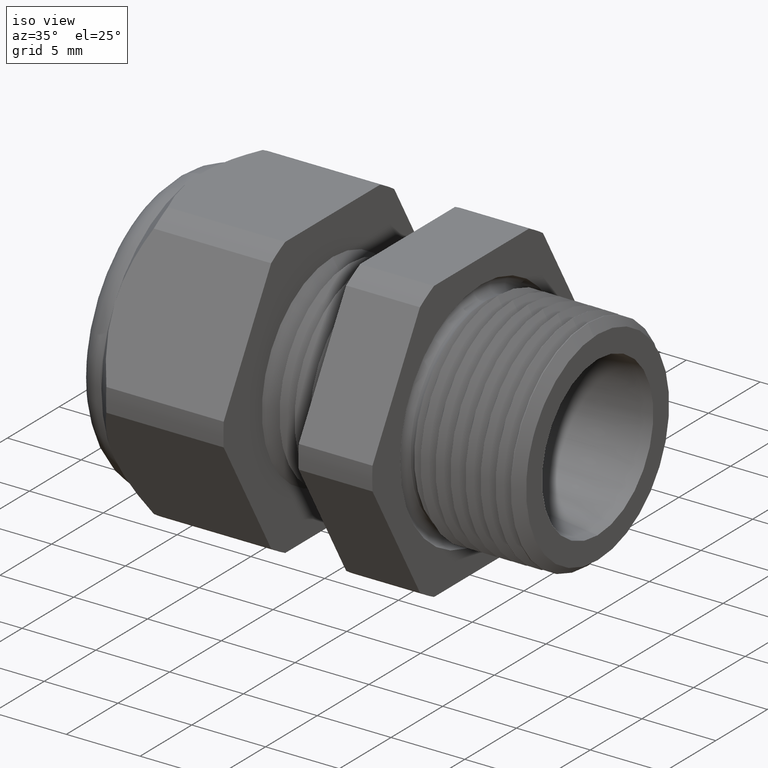
[diagram: clean part render]
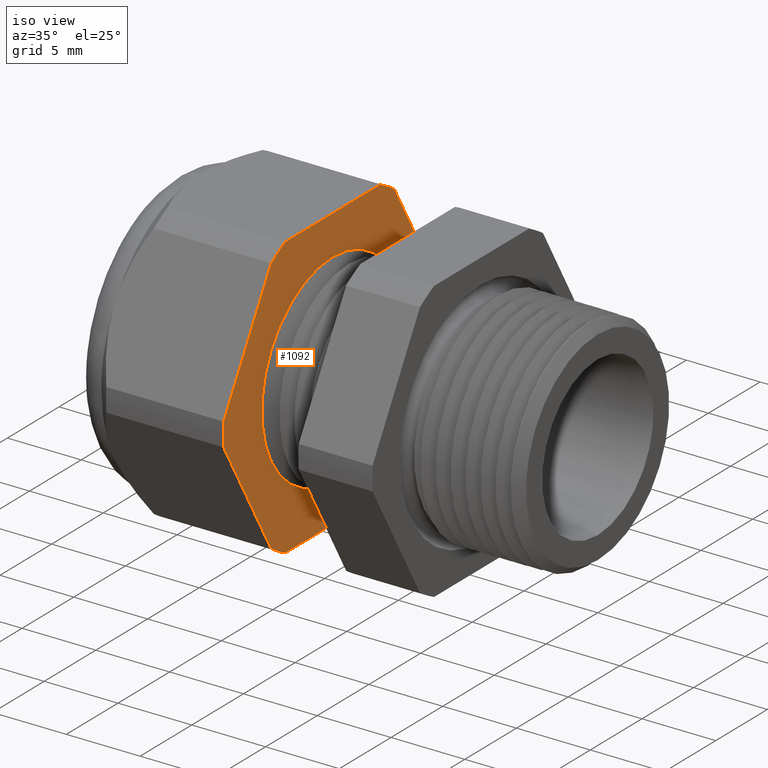
[diagram: same view with one face highlighted and labeled with its STEP entity id]
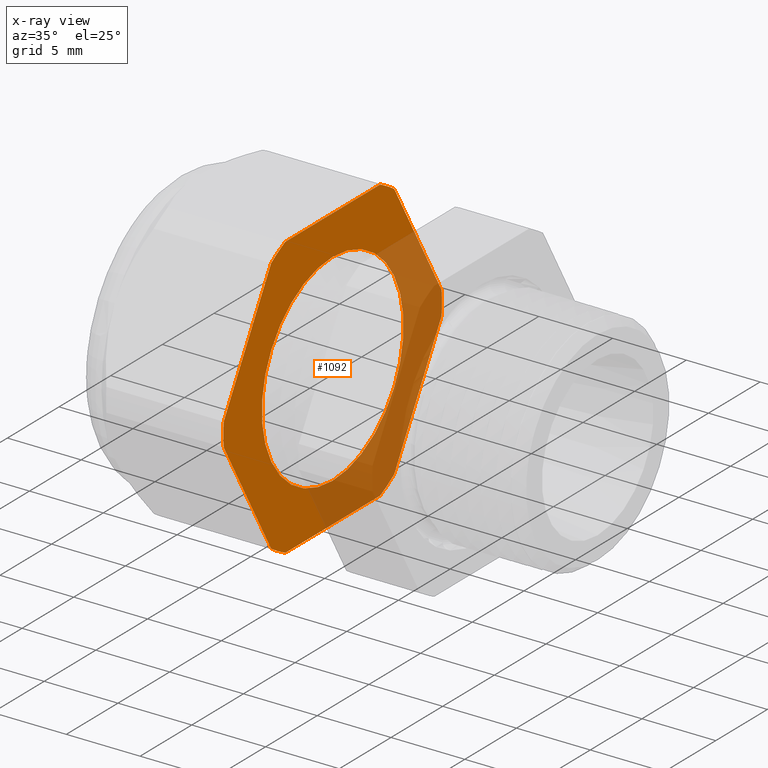
[diagram: x-ray of the same camera — body ghosted, the highlighted face saturated]
A machine part, iso view. The second image highlights one B-rep face of the part: STEP entity #1092.
The next image is the same camera in x-ray: the body ghosted, the highlighted face saturated — about 38% of this face is hidden behind the body in this view.
In plain terms, the highlighted planar face has unit normal (1, 0, 0).
Its self-contained STEP definition (entity closure, byte-faithful):
#348 = EDGE_CURVE ( 'NONE', #356, #349, #2451, .T. ) ;
#349 = VERTEX_POINT ( 'NONE', #2446 ) ;
#356 = VERTEX_POINT ( 'NONE', #2438 ) ;
#424 = EDGE_CURVE ( 'NONE', #494, #498, #2563, .T. ) ;
#427 = EDGE_CURVE ( 'NONE', #431, #450, #2614, .T. ) ;
#429 = VERTEX_POINT ( 'NONE', #2609 ) ;
#431 = VERTEX_POINT ( 'NONE', #2604 ) ;
#442 = EDGE_CURVE ( 'NONE', #429, #494, #2651, .T. ) ;
#443 = EDGE_CURVE ( 'NONE', #450, #429, #2646, .T. ) ;
#450 = VERTEX_POINT ( 'NONE', #2635 ) ;
#461 = EDGE_CURVE ( 'NONE', #465, #431, #2665, .T. ) ;
#465 = VERTEX_POINT ( 'NONE', #2656 ) ;
#487 = EDGE_CURVE ( 'NONE', #517, #559, #2735, .T. ) ;
#494 = VERTEX_POINT ( 'NONE', #2759 ) ;
#498 = VERTEX_POINT ( 'NONE', #2754 ) ;
#510 = EDGE_CURVE ( 'NONE', #498, #517, #2798, .T. ) ;
#517 = VERTEX_POINT ( 'NONE', #2781 ) ;
#528 = EDGE_CURVE ( 'NONE', #530, #465, #2817, .T. ) ;
#529 = VERTEX_POINT ( 'NONE', #2812 ) ;
#530 = VERTEX_POINT ( 'NONE', #2811 ) ;
#543 = EDGE_CURVE ( 'NONE', #529, #530, #2887, .T. ) ;
#559 = VERTEX_POINT ( 'NONE', #2860 ) ;
#585 = VERTEX_POINT ( 'NONE', #2930 ) ;
#633 = EDGE_CURVE ( 'NONE', #559, #585, #3032, .T. ) ;
#646 = VERTEX_POINT ( 'NONE', #3067 ) ;
#654 = EDGE_CURVE ( 'NONE', #585, #646, #3055, .T. ) ;
#754 = DIRECTION ( 'NONE',  ( 0.0000000000000000000, 0.0000000000000000000, -1.000000000000000000 ) ) ;
#755 = DIRECTION ( 'NONE',  ( 1.000000000000000000, 0.0000000000000000000, 0.0000000000000000000 ) ) ;
#756 = CARTESIAN_POINT ( 'NONE',  ( -0.7069291338582672800, 0.0000000000000000000, 0.0000000000000000000 ) ) ;
#757 = AXIS2_PLACEMENT_3D ( 'NONE', #756, #755, #754 ) ;
#758 = CIRCLE ( 'NONE', #757, 0.2699999999999999600 ) ;
#890 = DIRECTION ( 'NONE',  ( 0.0000000000000000000, 0.0000000000000000000, -1.000000000000000000 ) ) ;
#891 = DIRECTION ( 'NONE',  ( 1.000000000000000000, 0.0000000000000000000, 0.0000000000000000000 ) ) ;
#892 = CARTESIAN_POINT ( 'NONE',  ( -0.7069291338582676100, 0.0000000000000000000, 0.0000000000000000000 ) ) ;
#893 = AXIS2_PLACEMENT_3D ( 'NONE', #892, #891, #890 ) ;
#894 = CIRCLE ( 'NONE', #893, 0.4162500000000000100 ) ;
#905 = DIRECTION ( 'NONE',  ( 0.0000000000000000000, 0.0000000000000000000, -1.000000000000000000 ) ) ;
#906 = DIRECTION ( 'NONE',  ( 1.000000000000000000, 0.0000000000000000000, 0.0000000000000000000 ) ) ;
#907 = CARTESIAN_POINT ( 'NONE',  ( -0.7069291338582676100, 0.2699999999999999600, 0.0000000000000000000 ) ) ;
#908 = AXIS2_PLACEMENT_3D ( 'NONE', #907, #906, #905 ) ;
#909 = FACE_OUTER_BOUND ( 'NONE', #987, .T. ) ;
#910 = FACE_BOUND ( 'NONE', #1089, .T. ) ;
#915 = PLANE ( 'NONE',  #908 ) ;
#987 = EDGE_LOOP ( 'NONE', ( #1031, #1032, #1041, #1042, #1022, #1023, #1035, #1036, #1044, #1045, #1033, #1034 ) ) ;
#989 = EDGE_CURVE ( 'NONE', #349, #356, #758, .T. ) ;
#992 = ORIENTED_EDGE ( 'NONE', *, *, #989, .F. ) ;
#1022 = ORIENTED_EDGE ( 'NONE', *, *, #461, .T. ) ;
#1023 = ORIENTED_EDGE ( 'NONE', *, *, #427, .T. ) ;
#1031 = ORIENTED_EDGE ( 'NONE', *, *, #654, .T. ) ;
#1032 = ORIENTED_EDGE ( 'NONE', *, *, #1066, .T. ) ;
#1033 = ORIENTED_EDGE ( 'NONE', *, *, #487, .T. ) ;
#1034 = ORIENTED_EDGE ( 'NONE', *, *, #633, .T. ) ;
#1035 = ORIENTED_EDGE ( 'NONE', *, *, #443, .T. ) ;
#1036 = ORIENTED_EDGE ( 'NONE', *, *, #442, .T. ) ;
#1041 = ORIENTED_EDGE ( 'NONE', *, *, #543, .T. ) ;
#1042 = ORIENTED_EDGE ( 'NONE', *, *, #528, .T. ) ;
#1044 = ORIENTED_EDGE ( 'NONE', *, *, #424, .T. ) ;
#1045 = ORIENTED_EDGE ( 'NONE', *, *, #510, .T. ) ;
#1066 = EDGE_CURVE ( 'NONE', #646, #529, #894, .T. ) ;
#1089 = EDGE_LOOP ( 'NONE', ( #992, #1095 ) ) ;
#1092 = ADVANCED_FACE ( 'NONE', ( #910, #909 ), #915, .T. ) ;
#1095 = ORIENTED_EDGE ( 'NONE', *, *, #348, .F. ) ;
#2438 = CARTESIAN_POINT ( 'NONE',  ( -0.7069291338582672800, 3.306546357697853700E-017, -0.2699999999999999600 ) ) ;
#2446 = CARTESIAN_POINT ( 'NONE',  ( -0.7069291338582672800, 0.0000000000000000000, 0.2699999999999999600 ) ) ;
#2447 = DIRECTION ( 'NONE',  ( 0.0000000000000000000, 0.0000000000000000000, -1.000000000000000000 ) ) ;
#2448 = DIRECTION ( 'NONE',  ( 1.000000000000000000, 0.0000000000000000000, 0.0000000000000000000 ) ) ;
#2449 = CARTESIAN_POINT ( 'NONE',  ( -0.7069291338582672800, 0.0000000000000000000, 0.0000000000000000000 ) ) ;
#2450 = AXIS2_PLACEMENT_3D ( 'NONE', #2449, #2448, #2447 ) ;
#2451 = CIRCLE ( 'NONE', #2450, 0.2699999999999999600 ) ;
#2561 = VECTOR ( 'NONE', #2619, 39.37007874015748100 ) ;
#2562 = CARTESIAN_POINT ( 'NONE',  ( -0.7069291338582676100, -0.2572595264191644400, -0.3044134295108994500 ) ) ;
#2563 = LINE ( 'NONE', #2562, #2561 ) ;
#2604 = CARTESIAN_POINT ( 'NONE',  ( -0.7069291338582672800, -0.1806628420566890600, 0.3749999999999998900 ) ) ;
#2609 = CARTESIAN_POINT ( 'NONE',  ( -0.7069291338582672800, -0.4150909474475089100, 0.03104138925901169000 ) ) ;
#2610 = DIRECTION ( 'NONE',  ( 0.0000000000000000000, 0.0000000000000000000, -1.000000000000000000 ) ) ;
#2611 = DIRECTION ( 'NONE',  ( 1.000000000000000000, 0.0000000000000000000, 0.0000000000000000000 ) ) ;
#2612 = CARTESIAN_POINT ( 'NONE',  ( -0.7069291338582676100, 0.0000000000000000000, 0.0000000000000000000 ) ) ;
#2613 = AXIS2_PLACEMENT_3D ( 'NONE', #2612, #2611, #2610 ) ;
#2614 = CIRCLE ( 'NONE', #2613, 0.4162500000000001200 ) ;
#2619 = DIRECTION ( 'NONE',  ( 0.0000000000000000000, 0.5000000000000003300, -0.8660254037844383700 ) ) ;
#2635 = CARTESIAN_POINT ( 'NONE',  ( -0.7069291338582672800, -0.2344281053908203500, 0.3439586107409879900 ) ) ;
#2643 = DIRECTION ( 'NONE',  ( 0.0000000000000000000, -0.4999999999999998300, -0.8660254037844388200 ) ) ;
#2644 = VECTOR ( 'NONE', #2643, 39.37007874015748100 ) ;
#2645 = CARTESIAN_POINT ( 'NONE',  ( -0.7069291338582676100, -0.2572595264191645500, 0.3044134295108991100 ) ) ;
#2646 = LINE ( 'NONE', #2645, #2644 ) ;
#2647 = DIRECTION ( 'NONE',  ( 0.0000000000000000000, 0.0000000000000000000, -1.000000000000000000 ) ) ;
#2648 = DIRECTION ( 'NONE',  ( 1.000000000000000000, 0.0000000000000000000, 0.0000000000000000000 ) ) ;
#2649 = CARTESIAN_POINT ( 'NONE',  ( -0.7069291338582676100, 0.0000000000000000000, 0.0000000000000000000 ) ) ;
#2650 = AXIS2_PLACEMENT_3D ( 'NONE', #2649, #2648, #2647 ) ;
#2651 = CIRCLE ( 'NONE', #2650, 0.4162500000000001200 ) ;
#2656 = CARTESIAN_POINT ( 'NONE',  ( -0.7069291338582672800, 0.1806628420566889800, 0.3749999999999998300 ) ) ;
#2662 = DIRECTION ( 'NONE',  ( 0.0000000000000000000, -1.000000000000000000, 0.0000000000000000000 ) ) ;
#2663 = VECTOR ( 'NONE', #2662, 39.37007874015748100 ) ;
#2664 = CARTESIAN_POINT ( 'NONE',  ( -0.7069291338582676100, 0.2699999999999999600, 0.3749999999999998300 ) ) ;
#2665 = LINE ( 'NONE', #2664, #2663 ) ;
#2724 = VECTOR ( 'NONE', #2733, 39.37007874015748100 ) ;
#2733 = DIRECTION ( 'NONE',  ( 0.0000000000000000000, 1.000000000000000000, 0.0000000000000000000 ) ) ;
#2734 = CARTESIAN_POINT ( 'NONE',  ( -0.7069291338582676100, 0.2699999999999999600, -0.3750000000000001700 ) ) ;
#2735 = LINE ( 'NONE', #2734, #2724 ) ;
#2754 = CARTESIAN_POINT ( 'NONE',  ( -0.7069291338582672800, -0.2344281053908202100, -0.3439586107409880500 ) ) ;
#2759 = CARTESIAN_POINT ( 'NONE',  ( -0.7069291338582672800, -0.4150909474475088000, -0.03104138925901236300 ) ) ;
#2781 = CARTESIAN_POINT ( 'NONE',  ( -0.7069291338582672800, -0.1806628420566883400, -0.3750000000000001700 ) ) ;
#2794 = DIRECTION ( 'NONE',  ( 0.0000000000000000000, 0.0000000000000000000, -1.000000000000000000 ) ) ;
#2795 = DIRECTION ( 'NONE',  ( 1.000000000000000000, 0.0000000000000000000, 0.0000000000000000000 ) ) ;
#2796 = CARTESIAN_POINT ( 'NONE',  ( -0.7069291338582676100, 0.0000000000000000000, 0.0000000000000000000 ) ) ;
#2797 = AXIS2_PLACEMENT_3D ( 'NONE', #2796, #2795, #2794 ) ;
#2798 = CIRCLE ( 'NONE', #2797, 0.4162500000000000100 ) ;
#2811 = CARTESIAN_POINT ( 'NONE',  ( -0.7069291338582672800, 0.2344281053908204600, 0.3439586107409877700 ) ) ;
#2812 = CARTESIAN_POINT ( 'NONE',  ( -0.7069291338582672800, 0.4150909474475088000, 0.03104138925901234500 ) ) ;
#2813 = DIRECTION ( 'NONE',  ( 0.0000000000000000000, 0.0000000000000000000, -1.000000000000000000 ) ) ;
#2814 = DIRECTION ( 'NONE',  ( 1.000000000000000000, 0.0000000000000000000, 0.0000000000000000000 ) ) ;
#2815 = CARTESIAN_POINT ( 'NONE',  ( -0.7069291338582676100, 0.0000000000000000000, 0.0000000000000000000 ) ) ;
#2816 = AXIS2_PLACEMENT_3D ( 'NONE', #2815, #2814, #2813 ) ;
#2817 = CIRCLE ( 'NONE', #2816, 0.4162499999999999500 ) ;
#2860 = CARTESIAN_POINT ( 'NONE',  ( -0.7069291338582672800, 0.1806628420566883100, -0.3750000000000001700 ) ) ;
#2884 = DIRECTION ( 'NONE',  ( 0.0000000000000000000, -0.5000000000000001100, 0.8660254037844386000 ) ) ;
#2885 = VECTOR ( 'NONE', #2884, 39.37007874015748100 ) ;
#2886 = CARTESIAN_POINT ( 'NONE',  ( -0.7069291338582676100, 0.3922595264191645600, 0.07058657048910087200 ) ) ;
#2887 = LINE ( 'NONE', #2886, #2885 ) ;
#2930 = CARTESIAN_POINT ( 'NONE',  ( -0.7069291338582672800, 0.2344281053908206800, -0.3439586107409877100 ) ) ;
#3028 = DIRECTION ( 'NONE',  ( 0.0000000000000000000, 0.0000000000000000000, -1.000000000000000000 ) ) ;
#3029 = DIRECTION ( 'NONE',  ( 1.000000000000000000, 0.0000000000000000000, 0.0000000000000000000 ) ) ;
#3030 = CARTESIAN_POINT ( 'NONE',  ( -0.7069291338582676100, 0.0000000000000000000, 0.0000000000000000000 ) ) ;
#3031 = AXIS2_PLACEMENT_3D ( 'NONE', #3030, #3029, #3028 ) ;
#3032 = CIRCLE ( 'NONE', #3031, 0.4162500000000000100 ) ;
#3053 = VECTOR ( 'NONE', #3112, 39.37007874015748100 ) ;
#3054 = CARTESIAN_POINT ( 'NONE',  ( -0.7069291338582676100, 0.3922595264191647300, -0.07058657048910087200 ) ) ;
#3055 = LINE ( 'NONE', #3054, #3053 ) ;
#3067 = CARTESIAN_POINT ( 'NONE',  ( -0.7069291338582676100, 0.4150909474475088000, -0.03104138925901243900 ) ) ;
#3112 = DIRECTION ( 'NONE',  ( 0.0000000000000000000, 0.4999999999999998300, 0.8660254037844388200 ) ) ;